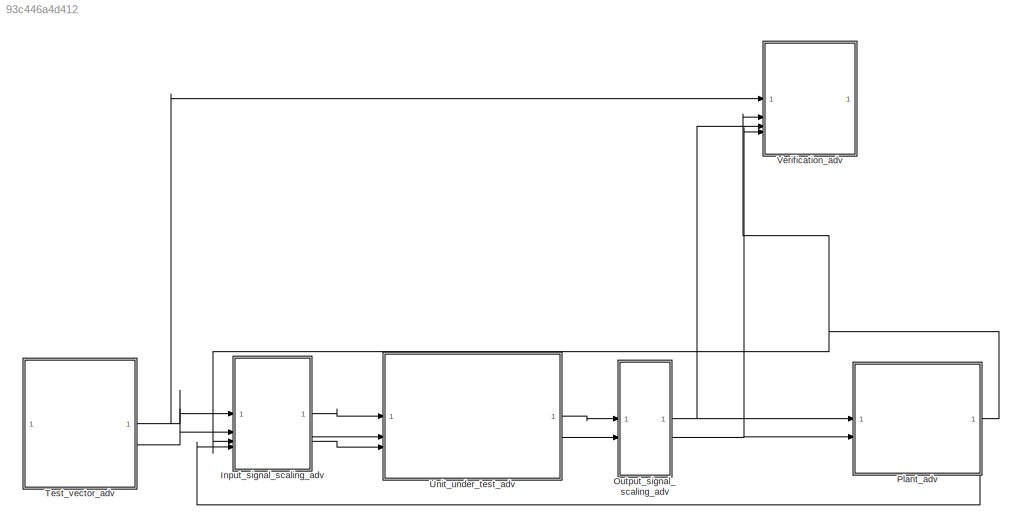
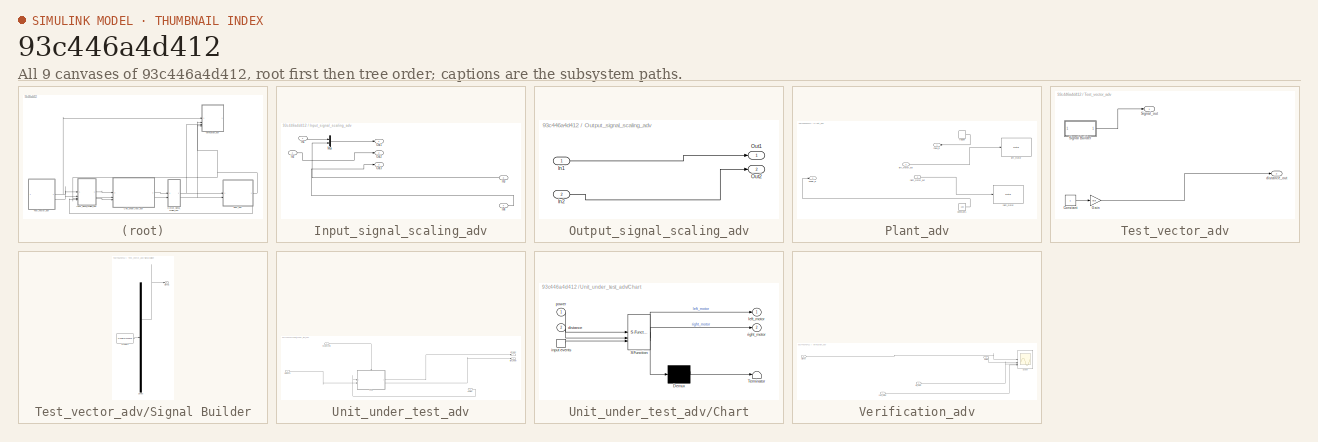
[diagram: thumbnail index - all 9 canvases of the model, root first then tree order]
MODEL slx_93c446a4d412
KIND model
CONFIG AbsTol = auto
CONFIG EnableMultiTasking = on
CONFIG FixedStep = 0.05
CONFIG MaxStep = auto
CONFIG MinStep = auto
CONFIG RelTol = 1e-3
CONFIG SampleTimeConstraint = Unconstrained
CONFIG SolverName = FixedStepDiscrete
CONFIG StartTime = 0.0
CONFIG StopTime = 18
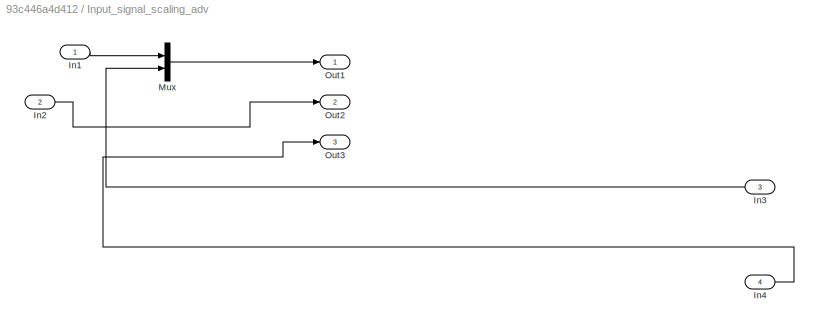
BLOCK [SubSystem] Input_signal_scaling_adv
BLOCK [Inport] Input_signal_scaling_adv/In1
BLOCK [Inport] Input_signal_scaling_adv/In2
  Port = 2
BLOCK [Inport] Input_signal_scaling_adv/In3
  Port = 3
BLOCK [Inport] Input_signal_scaling_adv/In4
  Port = 4
BLOCK [Mux] Input_signal_scaling_adv/Mux
  DisplayOption = bar
  Inputs = 2
BLOCK [Outport] Input_signal_scaling_adv/Out1
BLOCK [Outport] Input_signal_scaling_adv/Out2
  Port = 2
BLOCK [Outport] Input_signal_scaling_adv/Out3
  Port = 3
BLOCK [SubSystem] Output_signal_scaling_adv
BLOCK [Inport] Output_signal_scaling_adv/In1
BLOCK [Inport] Output_signal_scaling_adv/In2
  Port = 2
BLOCK [Outport] Output_signal_scaling_adv/Out1
BLOCK [Outport] Output_signal_scaling_adv/Out2
  Port = 2
BLOCK [SubSystem] Plant_adv
BLOCK [Constant] Plant_adv/Constant1
  Value = 100
BLOCK [Outport] Plant_adv/Power_in
  Port = 2
BLOCK [Outport] Plant_adv/Pulse_in
BLOCK [Reference] Plant_adv/left_motor  REF=legoev3lib/Motor
  SourceBlock = legoev3lib/Motor
  SourceType = LEGO MINDSTORMS EV3 Motor
BLOCK [Inport] Plant_adv/left_motor_out
BLOCK [Reference] Plant_adv/right_motor  REF=legoev3lib/Motor
  SourceBlock = legoev3lib/Motor
  SourceType = LEGO MINDSTORMS EV3 Motor
BLOCK [Inport] Plant_adv/right_motor_out
  Port = 2
BLOCK [DiscretePulseGenerator] Plant_adv/trigger
  Period = 3
  PulseWidth = 2
  SampleTime = 0.05
BLOCK [SubSystem] Test_vector_adv
BLOCK [Constant] Test_vector_adv/Constant
BLOCK [Gain] Test_vector_adv/Gain
  Gain = dist
BLOCK [SubSystem] Test_vector_adv/Signal Builder
  ClipboardFcn = sigbuilder_block('clipboard');
  CloseFcn = sigbuilder_block('close');
  ContinueFcn = sigbuilder_block('continue');
  CopyFcn = sigbuilder_block('copy');
  DeleteFcn = sigbuilder_block('delete');
  LoadFcn = sigbuilder_block('load');
  MaskHideContents = on
  ModelCloseFcn = sigbuilder_block('modelClose');
  NameChangeFcn = sigbuilder_block('namechange');
  OpenFcn = sigbuilder_block('open',[6 30 1012.5 447.75 ]);
  PauseFcn = sigbuilder_block('pause');
  PreSaveFcn = sigbuilder_block('preSave');
  StartFcn = sigbuilder_block('start');
  StopFcn = sigbuilder_block('stop');
  Tag = STV Subsys
BLOCK [Demux] Test_vector_adv/Signal Builder/Demux
  DisplayOption = none
  Outputs = 1
  Tag = STV Demux
BLOCK [FromWorkspace] Test_vector_adv/Signal Builder/FromWs
  Tag = STV FromWs
  VariableName = tuvar
BLOCK [Outport] Test_vector_adv/Signal Builder/Signal 1
  Tag = STV Outport
BLOCK [Outport] Test_vector_adv/Signal_out
BLOCK [Outport] Test_vector_adv/distance_out
  Port = 2
BLOCK [SubSystem] Unit_under_test_adv
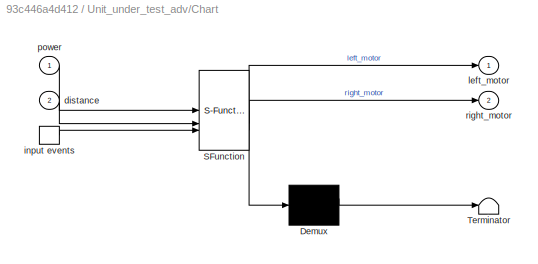
BLOCK [SubSystem] Unit_under_test_adv/Chart
  ErrorFcn = Stateflow.Translate.translate
  PermitHierarchicalResolution = ExplicitOnly
  SFBlockType = Chart
  TreatAsAtomicUnit = on
BLOCK [Demux] Unit_under_test_adv/Chart/ Demux 
  Outputs = 1
BLOCK [S-Function] Unit_under_test_adv/Chart/ SFunction 
  EnableBusSupport = on
  FunctionName = sf_sfun
  PortCounts = [3 3]
  SFcnIsStateOwnerBlock = off
  SFunctionDeploymentMode = off
  Tag = Stateflow S-Function 3
BLOCK [Terminator] Unit_under_test_adv/Chart/ Terminator 
BLOCK [Inport] Unit_under_test_adv/Chart/distance
  Port = 2
BLOCK [TriggerPort] Unit_under_test_adv/Chart/input events
  ShowOutputPort = on
  StatesWhenEnabling = held
  VariantControl = (inherit)
BLOCK [Outport] Unit_under_test_adv/Chart/left_motor
BLOCK [Inport] Unit_under_test_adv/Chart/power
BLOCK [Outport] Unit_under_test_adv/Chart/right_motor
  Port = 2
BLOCK [Inport] Unit_under_test_adv/distance
  Port = 2
BLOCK [Inport] Unit_under_test_adv/input events
BLOCK [Outport] Unit_under_test_adv/left_motor
BLOCK [Inport] Unit_under_test_adv/power
  Port = 3
BLOCK [Outport] Unit_under_test_adv/right_motor
  Port = 2
BLOCK [SubSystem] Verification_adv
BLOCK [Inport] Verification_adv/Pulse
  Port = 2
BLOCK [Scope] Verification_adv/Scope
  Floating = off
  NumInputPorts = 4
  ScopeSpecificationString = Simulink.scopes.TimeScopeBlockCfg('CurrentConfiguration', extmgr.ConfigurationSet(extmgr.Configuration('Core','General UI',true),extmgr.Configuration('Core','Source UI',true),extmgr.Configuration('Sources','WiredSimulink',true),extmgr.Configuration('Visuals','Time Domain',true,'PlotType','Stem','SerializedDisplays',{struct('MinYLimReal','-0.13055','MaxYLimReal','1.12562','YLabelReal','','MinYLimMa...<+3385ch>
BLOCK [Inport] Verification_adv/Signal
BLOCK [Inport] Verification_adv/left_motor
  Port = 3
BLOCK [Inport] Verification_adv/right_motor
  Port = 4
LINE Input_signal_scaling_adv/In1:1 -> Input_signal_scaling_adv/Mux:1
LINE Input_signal_scaling_adv/In2:1 -> Input_signal_scaling_adv/Out2:1
LINE Input_signal_scaling_adv/In3:1 -> Input_signal_scaling_adv/Mux:2
LINE Input_signal_scaling_adv/In4:1 -> Input_signal_scaling_adv/Out3:1
LINE Input_signal_scaling_adv/Mux:1 -> Input_signal_scaling_adv/Out1:1
LINE Input_signal_scaling_adv:1 -> Unit_under_test_adv:1
LINE Input_signal_scaling_adv:2 -> Unit_under_test_adv:2
LINE Input_signal_scaling_adv:3 -> Unit_under_test_adv:3
LINE Output_signal_scaling_adv/In1:1 -> Output_signal_scaling_adv/Out1:1
LINE Output_signal_scaling_adv/In2:1 -> Output_signal_scaling_adv/Out2:1
NET Output_signal_scaling_adv:1 -> Plant_adv:1, Verification_adv:3
NET Output_signal_scaling_adv:2 -> Plant_adv:2, Verification_adv:4
LINE Plant_adv/Constant1:1 -> Plant_adv/Power_in:1
LINE Plant_adv/left_motor_out:1 -> Plant_adv/left_motor:1
LINE Plant_adv/right_motor_out:1 -> Plant_adv/right_motor:1
LINE Plant_adv/trigger:1 -> Plant_adv/Pulse_in:1
NET Plant_adv:1 -> Input_signal_scaling_adv:3, Verification_adv:2
LINE Plant_adv:2 -> Input_signal_scaling_adv:4
LINE Test_vector_adv/Constant:1 -> Test_vector_adv/Gain:1
LINE Test_vector_adv/Gain:1 -> Test_vector_adv/distance_out:1
LINE Test_vector_adv/Signal Builder:1 -> Test_vector_adv/Signal_out:1
NET Test_vector_adv:1 -> Input_signal_scaling_adv:1, Verification_adv:1
LINE Test_vector_adv:2 -> Input_signal_scaling_adv:2
LINE Unit_under_test_adv/Chart:1 -> Unit_under_test_adv/left_motor:1
LINE Unit_under_test_adv/Chart:2 -> Unit_under_test_adv/right_motor:1
LINE Unit_under_test_adv/distance:1 -> Unit_under_test_adv/Chart:2
LINE Unit_under_test_adv/input events:1 -> Unit_under_test_adv/Chart:trigger
LINE Unit_under_test_adv/power:1 -> Unit_under_test_adv/Chart:1
LINE Unit_under_test_adv:1 -> Output_signal_scaling_adv:1
LINE Unit_under_test_adv:2 -> Output_signal_scaling_adv:2
LINE Verification_adv/Pulse:1 -> Verification_adv/Scope:2
LINE Verification_adv/Signal:1 -> Verification_adv/Scope:1
LINE Verification_adv/left_motor:1 -> Verification_adv/Scope:3
LINE Verification_adv/right_motor:1 -> Verification_adv/Scope:4
note: NET lines group one-source signal fan-out (src -> all destinations, sorted); 1:1 wires keep LINE
CHART Unit_under_test_adv/Chart states=3 transitions=12
  STATE_LABEL 'OFF_sq\nentry:\nright_motor=0;\nleft_motor=0;\nc=0;\n'
  STATE_LABEL 'ON_sq\nright_motor =power;\nleft_motor =power;\n'
  STATE_LABEL 'sq\nentry:\nright_motor= 0;\nleft_motor=power;\n'
CHART  states=0 transitions=0
